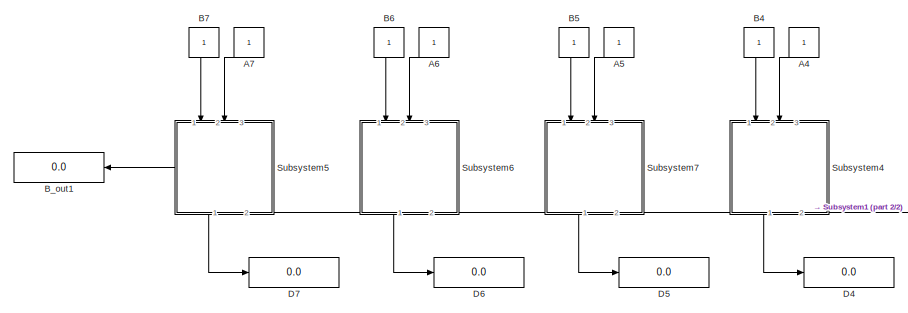
[diagram: root canvas - part 1/2, left side, full height]
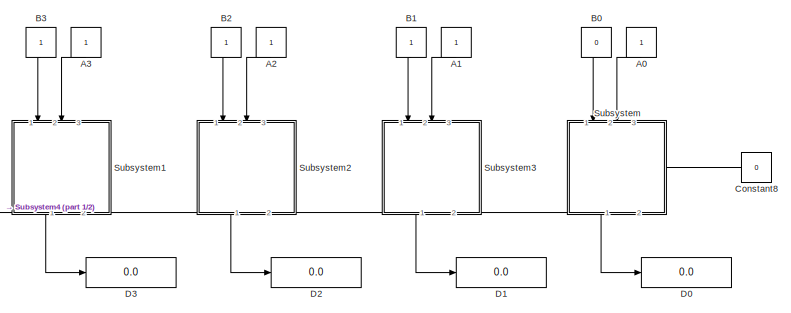
[diagram: root canvas - part 2/2, right side, full height]
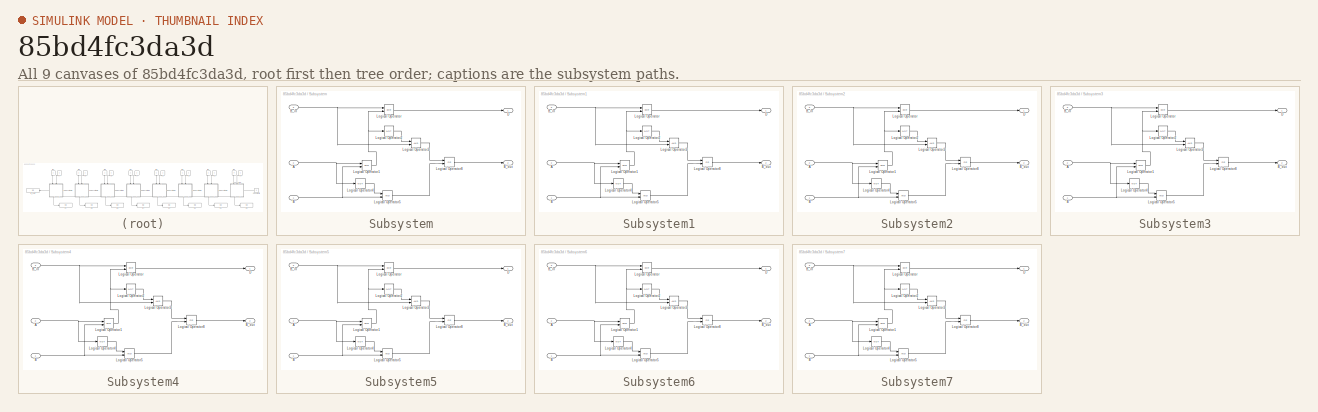
[diagram: thumbnail index - all 9 canvases of the model, root first then tree order]
MODEL slx_85bd4fc3da3d
KIND model
CONFIG AbsTol = auto
CONFIG EnableMultiTasking = off
CONFIG FixedStep = auto
CONFIG MaxStep = auto
CONFIG MinStep = auto
CONFIG RelTol = 1e-3
CONFIG SampleTimeConstraint = Unconstrained
CONFIG SolverName = VariableStepAuto
CONFIG StartTime = 0.0
CONFIG StopTime = 10.0
BLOCK [Constant] A0
  NameLocation = right
BLOCK [Constant] A1
  NameLocation = right
BLOCK [Constant] A2
  NameLocation = right
BLOCK [Constant] A3
  NameLocation = right
BLOCK [Constant] A4
  NameLocation = right
BLOCK [Constant] A5
  NameLocation = right
BLOCK [Constant] A6
  NameLocation = right
BLOCK [Constant] A7
  NameLocation = right
BLOCK [Constant] B0
  NameLocation = left
  Value = 0
BLOCK [Constant] B1
  NameLocation = left
BLOCK [Constant] B2
  NameLocation = left
BLOCK [Constant] B3
  NameLocation = left
BLOCK [Constant] B4
  NameLocation = left
BLOCK [Constant] B5
  NameLocation = left
BLOCK [Constant] B6
  NameLocation = left
BLOCK [Constant] B7
  NameLocation = left
BLOCK [Display] B_out1
  Decimation = 1
  Ports = [1]
BLOCK [Constant] Constant8
  NameLocation = top
  Value = 0
BLOCK [Display] D0
  Decimation = 1
  Ports = [1]
BLOCK [Display] D1
  Decimation = 1
  Ports = [1]
BLOCK [Display] D2
  Decimation = 1
  Ports = [1]
BLOCK [Display] D3
  Decimation = 1
  Ports = [1]
BLOCK [Display] D4
  Decimation = 1
  Ports = [1]
BLOCK [Display] D5
  Decimation = 1
  Ports = [1]
BLOCK [Display] D6
  Decimation = 1
  Ports = [1]
BLOCK [Display] D7
  Decimation = 1
  Ports = [1]
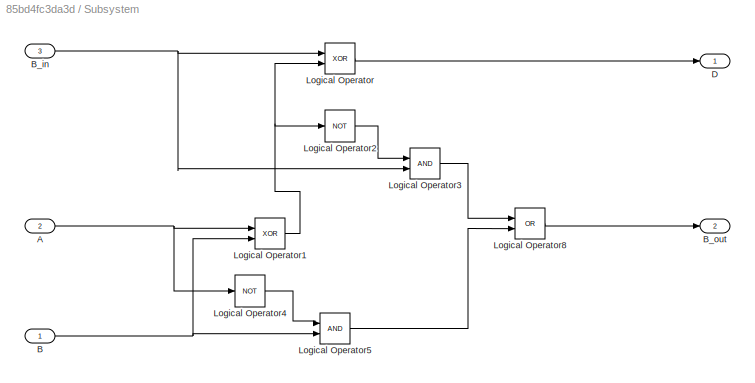
BLOCK [SubSystem] Subsystem
  NameLocation = left
  PortSchema = {"entries":[{"content":{"sides":[{"content":{"connectorIds":["In1","In2"]},"type":"ConnectorPlacement.EquallySpacedRectSide","uuid":"38d1d783-1e84-469f-b88f-34400794f458"},{"content":{"connectorIds":["Out1"],"side":"RIGHT"},"type":"ConnectorPlacement.EquallySpacedRectSide","uuid":"9549b396-3b16-432f-9c12-dae7a5b8dc11"},{"content":{"connectorIds":["Out2"],"side":"TOP"},"type":"ConnectorPlacement.Eq...<+401ch>  <repeated x8 — deduplicated; at blocks: Subsystem, Subsystem1, Subsystem2, Subsystem3, Subsystem4, Subsystem5, Subsystem6, Subsystem7>
  Ports = [3, 2]
  RequestExecContextInheritance = off
BLOCK [Inport] Subsystem/A
  Port = 2
BLOCK [Inport] Subsystem/B
BLOCK [Inport] Subsystem/B_in
  Port = 3
BLOCK [Outport] Subsystem/B_out
  Port = 2
BLOCK [Outport] Subsystem/D
BLOCK [Logic] Subsystem/Logical Operator
  AllPortsSameDT = off
  Operator = XOR
  OutDataTypeStr = boolean
  Ports = [2, 1]
BLOCK [Logic] Subsystem/Logical Operator1
  AllPortsSameDT = off
  Operator = XOR
  OutDataTypeStr = boolean
  Ports = [2, 1]
BLOCK [Logic] Subsystem/Logical Operator2
  AllPortsSameDT = off
  Operator = NOT
  OutDataTypeStr = boolean
  Ports = [1, 1]
BLOCK [Logic] Subsystem/Logical Operator3
  AllPortsSameDT = off
  OutDataTypeStr = boolean
  Ports = [2, 1]
BLOCK [Logic] Subsystem/Logical Operator4
  AllPortsSameDT = off
  Operator = NOT
  OutDataTypeStr = boolean
  Ports = [1, 1]
BLOCK [Logic] Subsystem/Logical Operator5
  AllPortsSameDT = off
  OutDataTypeStr = boolean
  Ports = [2, 1]
BLOCK [Logic] Subsystem/Logical Operator8
  AllPortsSameDT = off
  Operator = OR
  OutDataTypeStr = boolean
  Ports = [2, 1]
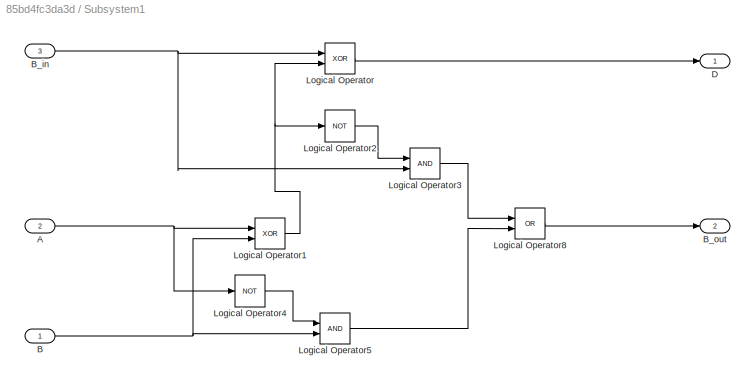
BLOCK [SubSystem] Subsystem1
  NameLocation = left
  Ports = [3, 2]
  RequestExecContextInheritance = off
BLOCK [Inport] Subsystem1/A
  Port = 2
BLOCK [Inport] Subsystem1/B
BLOCK [Inport] Subsystem1/B_in
  Port = 3
BLOCK [Outport] Subsystem1/B_out
  Port = 2
BLOCK [Outport] Subsystem1/D
BLOCK [Logic] Subsystem1/Logical Operator
  AllPortsSameDT = off
  Operator = XOR
  OutDataTypeStr = boolean
  Ports = [2, 1]
BLOCK [Logic] Subsystem1/Logical Operator1
  AllPortsSameDT = off
  Operator = XOR
  OutDataTypeStr = boolean
  Ports = [2, 1]
BLOCK [Logic] Subsystem1/Logical Operator2
  AllPortsSameDT = off
  Operator = NOT
  OutDataTypeStr = boolean
  Ports = [1, 1]
BLOCK [Logic] Subsystem1/Logical Operator3
  AllPortsSameDT = off
  OutDataTypeStr = boolean
  Ports = [2, 1]
BLOCK [Logic] Subsystem1/Logical Operator4
  AllPortsSameDT = off
  Operator = NOT
  OutDataTypeStr = boolean
  Ports = [1, 1]
BLOCK [Logic] Subsystem1/Logical Operator5
  AllPortsSameDT = off
  OutDataTypeStr = boolean
  Ports = [2, 1]
BLOCK [Logic] Subsystem1/Logical Operator8
  AllPortsSameDT = off
  Operator = OR
  OutDataTypeStr = boolean
  Ports = [2, 1]
BLOCK [SubSystem] Subsystem2
  NameLocation = left
  Ports = [3, 2]
  RequestExecContextInheritance = off
BLOCK [Inport] Subsystem2/A
  Port = 2
BLOCK [Inport] Subsystem2/B
BLOCK [Inport] Subsystem2/B_in
  Port = 3
BLOCK [Outport] Subsystem2/B_out
  Port = 2
BLOCK [Outport] Subsystem2/D
BLOCK [Logic] Subsystem2/Logical Operator
  AllPortsSameDT = off
  Operator = XOR
  OutDataTypeStr = boolean
  Ports = [2, 1]
BLOCK [Logic] Subsystem2/Logical Operator1
  AllPortsSameDT = off
  Operator = XOR
  OutDataTypeStr = boolean
  Ports = [2, 1]
BLOCK [Logic] Subsystem2/Logical Operator2
  AllPortsSameDT = off
  Operator = NOT
  OutDataTypeStr = boolean
  Ports = [1, 1]
BLOCK [Logic] Subsystem2/Logical Operator3
  AllPortsSameDT = off
  OutDataTypeStr = boolean
  Ports = [2, 1]
BLOCK [Logic] Subsystem2/Logical Operator4
  AllPortsSameDT = off
  Operator = NOT
  OutDataTypeStr = boolean
  Ports = [1, 1]
BLOCK [Logic] Subsystem2/Logical Operator5
  AllPortsSameDT = off
  OutDataTypeStr = boolean
  Ports = [2, 1]
BLOCK [Logic] Subsystem2/Logical Operator8
  AllPortsSameDT = off
  Operator = OR
  OutDataTypeStr = boolean
  Ports = [2, 1]
BLOCK [SubSystem] Subsystem3
  NameLocation = left
  Ports = [3, 2]
  RequestExecContextInheritance = off
BLOCK [Inport] Subsystem3/A
  Port = 2
BLOCK [Inport] Subsystem3/B
BLOCK [Inport] Subsystem3/B_in
  Port = 3
BLOCK [Outport] Subsystem3/B_out
  Port = 2
BLOCK [Outport] Subsystem3/D
BLOCK [Logic] Subsystem3/Logical Operator
  AllPortsSameDT = off
  Operator = XOR
  OutDataTypeStr = boolean
  Ports = [2, 1]
BLOCK [Logic] Subsystem3/Logical Operator1
  AllPortsSameDT = off
  Operator = XOR
  OutDataTypeStr = boolean
  Ports = [2, 1]
BLOCK [Logic] Subsystem3/Logical Operator2
  AllPortsSameDT = off
  Operator = NOT
  OutDataTypeStr = boolean
  Ports = [1, 1]
BLOCK [Logic] Subsystem3/Logical Operator3
  AllPortsSameDT = off
  OutDataTypeStr = boolean
  Ports = [2, 1]
BLOCK [Logic] Subsystem3/Logical Operator4
  AllPortsSameDT = off
  Operator = NOT
  OutDataTypeStr = boolean
  Ports = [1, 1]
BLOCK [Logic] Subsystem3/Logical Operator5
  AllPortsSameDT = off
  OutDataTypeStr = boolean
  Ports = [2, 1]
BLOCK [Logic] Subsystem3/Logical Operator8
  AllPortsSameDT = off
  Operator = OR
  OutDataTypeStr = boolean
  Ports = [2, 1]
BLOCK [SubSystem] Subsystem4
  NameLocation = left
  Ports = [3, 2]
  RequestExecContextInheritance = off
BLOCK [Inport] Subsystem4/A
  Port = 2
BLOCK [Inport] Subsystem4/B
BLOCK [Inport] Subsystem4/B_in
  Port = 3
BLOCK [Outport] Subsystem4/B_out
  Port = 2
BLOCK [Outport] Subsystem4/D
BLOCK [Logic] Subsystem4/Logical Operator
  AllPortsSameDT = off
  Operator = XOR
  OutDataTypeStr = boolean
  Ports = [2, 1]
BLOCK [Logic] Subsystem4/Logical Operator1
  AllPortsSameDT = off
  Operator = XOR
  OutDataTypeStr = boolean
  Ports = [2, 1]
BLOCK [Logic] Subsystem4/Logical Operator2
  AllPortsSameDT = off
  Operator = NOT
  OutDataTypeStr = boolean
  Ports = [1, 1]
BLOCK [Logic] Subsystem4/Logical Operator3
  AllPortsSameDT = off
  OutDataTypeStr = boolean
  Ports = [2, 1]
BLOCK [Logic] Subsystem4/Logical Operator4
  AllPortsSameDT = off
  Operator = NOT
  OutDataTypeStr = boolean
  Ports = [1, 1]
BLOCK [Logic] Subsystem4/Logical Operator5
  AllPortsSameDT = off
  OutDataTypeStr = boolean
  Ports = [2, 1]
BLOCK [Logic] Subsystem4/Logical Operator8
  AllPortsSameDT = off
  Operator = OR
  OutDataTypeStr = boolean
  Ports = [2, 1]
BLOCK [SubSystem] Subsystem5
  NameLocation = left
  Ports = [3, 2]
  RequestExecContextInheritance = off
BLOCK [Inport] Subsystem5/A
  Port = 2
BLOCK [Inport] Subsystem5/B
BLOCK [Inport] Subsystem5/B_in
  Port = 3
BLOCK [Outport] Subsystem5/B_out
  Port = 2
BLOCK [Outport] Subsystem5/D
BLOCK [Logic] Subsystem5/Logical Operator
  AllPortsSameDT = off
  Operator = XOR
  OutDataTypeStr = boolean
  Ports = [2, 1]
BLOCK [Logic] Subsystem5/Logical Operator1
  AllPortsSameDT = off
  Operator = XOR
  OutDataTypeStr = boolean
  Ports = [2, 1]
BLOCK [Logic] Subsystem5/Logical Operator2
  AllPortsSameDT = off
  Operator = NOT
  OutDataTypeStr = boolean
  Ports = [1, 1]
BLOCK [Logic] Subsystem5/Logical Operator3
  AllPortsSameDT = off
  OutDataTypeStr = boolean
  Ports = [2, 1]
BLOCK [Logic] Subsystem5/Logical Operator4
  AllPortsSameDT = off
  Operator = NOT
  OutDataTypeStr = boolean
  Ports = [1, 1]
BLOCK [Logic] Subsystem5/Logical Operator5
  AllPortsSameDT = off
  OutDataTypeStr = boolean
  Ports = [2, 1]
BLOCK [Logic] Subsystem5/Logical Operator8
  AllPortsSameDT = off
  Operator = OR
  OutDataTypeStr = boolean
  Ports = [2, 1]
BLOCK [SubSystem] Subsystem6
  NameLocation = left
  Ports = [3, 2]
  RequestExecContextInheritance = off
BLOCK [Inport] Subsystem6/A
  Port = 2
BLOCK [Inport] Subsystem6/B
BLOCK [Inport] Subsystem6/B_in
  Port = 3
BLOCK [Outport] Subsystem6/B_out
  Port = 2
BLOCK [Outport] Subsystem6/D
BLOCK [Logic] Subsystem6/Logical Operator
  AllPortsSameDT = off
  Operator = XOR
  OutDataTypeStr = boolean
  Ports = [2, 1]
BLOCK [Logic] Subsystem6/Logical Operator1
  AllPortsSameDT = off
  Operator = XOR
  OutDataTypeStr = boolean
  Ports = [2, 1]
BLOCK [Logic] Subsystem6/Logical Operator2
  AllPortsSameDT = off
  Operator = NOT
  OutDataTypeStr = boolean
  Ports = [1, 1]
BLOCK [Logic] Subsystem6/Logical Operator3
  AllPortsSameDT = off
  OutDataTypeStr = boolean
  Ports = [2, 1]
BLOCK [Logic] Subsystem6/Logical Operator4
  AllPortsSameDT = off
  Operator = NOT
  OutDataTypeStr = boolean
  Ports = [1, 1]
BLOCK [Logic] Subsystem6/Logical Operator5
  AllPortsSameDT = off
  OutDataTypeStr = boolean
  Ports = [2, 1]
BLOCK [Logic] Subsystem6/Logical Operator8
  AllPortsSameDT = off
  Operator = OR
  OutDataTypeStr = boolean
  Ports = [2, 1]
BLOCK [SubSystem] Subsystem7
  NameLocation = left
  Ports = [3, 2]
  RequestExecContextInheritance = off
BLOCK [Inport] Subsystem7/A
  Port = 2
BLOCK [Inport] Subsystem7/B
BLOCK [Inport] Subsystem7/B_in
  Port = 3
BLOCK [Outport] Subsystem7/B_out
  Port = 2
BLOCK [Outport] Subsystem7/D
BLOCK [Logic] Subsystem7/Logical Operator
  AllPortsSameDT = off
  Operator = XOR
  OutDataTypeStr = boolean
  Ports = [2, 1]
BLOCK [Logic] Subsystem7/Logical Operator1
  AllPortsSameDT = off
  Operator = XOR
  OutDataTypeStr = boolean
  Ports = [2, 1]
BLOCK [Logic] Subsystem7/Logical Operator2
  AllPortsSameDT = off
  Operator = NOT
  OutDataTypeStr = boolean
  Ports = [1, 1]
BLOCK [Logic] Subsystem7/Logical Operator3
  AllPortsSameDT = off
  OutDataTypeStr = boolean
  Ports = [2, 1]
BLOCK [Logic] Subsystem7/Logical Operator4
  AllPortsSameDT = off
  Operator = NOT
  OutDataTypeStr = boolean
  Ports = [1, 1]
BLOCK [Logic] Subsystem7/Logical Operator5
  AllPortsSameDT = off
  OutDataTypeStr = boolean
  Ports = [2, 1]
BLOCK [Logic] Subsystem7/Logical Operator8
  AllPortsSameDT = off
  Operator = OR
  OutDataTypeStr = boolean
  Ports = [2, 1]
LINE A0:1 -> Subsystem:2
LINE A1:1 -> Subsystem3:2
LINE A2:1 -> Subsystem2:2
LINE A3:1 -> Subsystem1:2
LINE A4:1 -> Subsystem4:2
LINE A5:1 -> Subsystem7:2
LINE A6:1 -> Subsystem6:2
LINE A7:1 -> Subsystem5:2
LINE B0:1 -> Subsystem:1
LINE B1:1 -> Subsystem3:1
LINE B2:1 -> Subsystem2:1
LINE B3:1 -> Subsystem1:1
LINE B4:1 -> Subsystem4:1
LINE B5:1 -> Subsystem7:1
LINE B6:1 -> Subsystem6:1
LINE B7:1 -> Subsystem5:1
LINE Constant8:1 -> Subsystem:3
NET Subsystem/A:1 -> Subsystem/Logical Operator1:1, Subsystem/Logical Operator4:1
NET Subsystem/B:1 -> Subsystem/Logical Operator1:2, Subsystem/Logical Operator5:2
NET Subsystem/B_in:1 -> Subsystem/Logical Operator3:2, Subsystem/Logical Operator:1
NET Subsystem/Logical Operator1:1 -> Subsystem/Logical Operator2:1, Subsystem/Logical Operator:2
LINE Subsystem/Logical Operator2:1 -> Subsystem/Logical Operator3:1
LINE Subsystem/Logical Operator3:1 -> Subsystem/Logical Operator8:1
LINE Subsystem/Logical Operator4:1 -> Subsystem/Logical Operator5:1
LINE Subsystem/Logical Operator5:1 -> Subsystem/Logical Operator8:2
LINE Subsystem/Logical Operator8:1 -> Subsystem/B_out:1
LINE Subsystem/Logical Operator:1 -> Subsystem/D:1
NET Subsystem1/A:1 -> Subsystem1/Logical Operator1:1, Subsystem1/Logical Operator4:1
NET Subsystem1/B:1 -> Subsystem1/Logical Operator1:2, Subsystem1/Logical Operator5:2
NET Subsystem1/B_in:1 -> Subsystem1/Logical Operator3:2, Subsystem1/Logical Operator:1
NET Subsystem1/Logical Operator1:1 -> Subsystem1/Logical Operator2:1, Subsystem1/Logical Operator:2
LINE Subsystem1/Logical Operator2:1 -> Subsystem1/Logical Operator3:1
LINE Subsystem1/Logical Operator3:1 -> Subsystem1/Logical Operator8:1
LINE Subsystem1/Logical Operator4:1 -> Subsystem1/Logical Operator5:1
LINE Subsystem1/Logical Operator5:1 -> Subsystem1/Logical Operator8:2
LINE Subsystem1/Logical Operator8:1 -> Subsystem1/B_out:1
LINE Subsystem1/Logical Operator:1 -> Subsystem1/D:1
LINE Subsystem1:1 -> D3:1
LINE Subsystem1:2 -> Subsystem4:3
NET Subsystem2/A:1 -> Subsystem2/Logical Operator1:1, Subsystem2/Logical Operator4:1
NET Subsystem2/B:1 -> Subsystem2/Logical Operator1:2, Subsystem2/Logical Operator5:2
NET Subsystem2/B_in:1 -> Subsystem2/Logical Operator3:2, Subsystem2/Logical Operator:1
NET Subsystem2/Logical Operator1:1 -> Subsystem2/Logical Operator2:1, Subsystem2/Logical Operator:2
LINE Subsystem2/Logical Operator2:1 -> Subsystem2/Logical Operator3:1
LINE Subsystem2/Logical Operator3:1 -> Subsystem2/Logical Operator8:1
LINE Subsystem2/Logical Operator4:1 -> Subsystem2/Logical Operator5:1
LINE Subsystem2/Logical Operator5:1 -> Subsystem2/Logical Operator8:2
LINE Subsystem2/Logical Operator8:1 -> Subsystem2/B_out:1
LINE Subsystem2/Logical Operator:1 -> Subsystem2/D:1
LINE Subsystem2:1 -> D2:1
LINE Subsystem2:2 -> Subsystem1:3
NET Subsystem3/A:1 -> Subsystem3/Logical Operator1:1, Subsystem3/Logical Operator4:1
NET Subsystem3/B:1 -> Subsystem3/Logical Operator1:2, Subsystem3/Logical Operator5:2
NET Subsystem3/B_in:1 -> Subsystem3/Logical Operator3:2, Subsystem3/Logical Operator:1
NET Subsystem3/Logical Operator1:1 -> Subsystem3/Logical Operator2:1, Subsystem3/Logical Operator:2
LINE Subsystem3/Logical Operator2:1 -> Subsystem3/Logical Operator3:1
LINE Subsystem3/Logical Operator3:1 -> Subsystem3/Logical Operator8:1
LINE Subsystem3/Logical Operator4:1 -> Subsystem3/Logical Operator5:1
LINE Subsystem3/Logical Operator5:1 -> Subsystem3/Logical Operator8:2
LINE Subsystem3/Logical Operator8:1 -> Subsystem3/B_out:1
LINE Subsystem3/Logical Operator:1 -> Subsystem3/D:1
LINE Subsystem3:1 -> D1:1
LINE Subsystem3:2 -> Subsystem2:3
NET Subsystem4/A:1 -> Subsystem4/Logical Operator1:1, Subsystem4/Logical Operator4:1
NET Subsystem4/B:1 -> Subsystem4/Logical Operator1:2, Subsystem4/Logical Operator5:2
NET Subsystem4/B_in:1 -> Subsystem4/Logical Operator3:2, Subsystem4/Logical Operator:1
NET Subsystem4/Logical Operator1:1 -> Subsystem4/Logical Operator2:1, Subsystem4/Logical Operator:2
LINE Subsystem4/Logical Operator2:1 -> Subsystem4/Logical Operator3:1
LINE Subsystem4/Logical Operator3:1 -> Subsystem4/Logical Operator8:1
LINE Subsystem4/Logical Operator4:1 -> Subsystem4/Logical Operator5:1
LINE Subsystem4/Logical Operator5:1 -> Subsystem4/Logical Operator8:2
LINE Subsystem4/Logical Operator8:1 -> Subsystem4/B_out:1
LINE Subsystem4/Logical Operator:1 -> Subsystem4/D:1
LINE Subsystem4:1 -> D4:1
LINE Subsystem4:2 -> Subsystem7:3
NET Subsystem5/A:1 -> Subsystem5/Logical Operator1:1, Subsystem5/Logical Operator4:1
NET Subsystem5/B:1 -> Subsystem5/Logical Operator1:2, Subsystem5/Logical Operator5:2
NET Subsystem5/B_in:1 -> Subsystem5/Logical Operator3:2, Subsystem5/Logical Operator:1
NET Subsystem5/Logical Operator1:1 -> Subsystem5/Logical Operator2:1, Subsystem5/Logical Operator:2
LINE Subsystem5/Logical Operator2:1 -> Subsystem5/Logical Operator3:1
LINE Subsystem5/Logical Operator3:1 -> Subsystem5/Logical Operator8:1
LINE Subsystem5/Logical Operator4:1 -> Subsystem5/Logical Operator5:1
LINE Subsystem5/Logical Operator5:1 -> Subsystem5/Logical Operator8:2
LINE Subsystem5/Logical Operator8:1 -> Subsystem5/B_out:1
LINE Subsystem5/Logical Operator:1 -> Subsystem5/D:1
LINE Subsystem5:1 -> D7:1
LINE Subsystem5:2 -> B_out1:1
NET Subsystem6/A:1 -> Subsystem6/Logical Operator1:1, Subsystem6/Logical Operator4:1
NET Subsystem6/B:1 -> Subsystem6/Logical Operator1:2, Subsystem6/Logical Operator5:2
NET Subsystem6/B_in:1 -> Subsystem6/Logical Operator3:2, Subsystem6/Logical Operator:1
NET Subsystem6/Logical Operator1:1 -> Subsystem6/Logical Operator2:1, Subsystem6/Logical Operator:2
LINE Subsystem6/Logical Operator2:1 -> Subsystem6/Logical Operator3:1
LINE Subsystem6/Logical Operator3:1 -> Subsystem6/Logical Operator8:1
LINE Subsystem6/Logical Operator4:1 -> Subsystem6/Logical Operator5:1
LINE Subsystem6/Logical Operator5:1 -> Subsystem6/Logical Operator8:2
LINE Subsystem6/Logical Operator8:1 -> Subsystem6/B_out:1
LINE Subsystem6/Logical Operator:1 -> Subsystem6/D:1
LINE Subsystem6:1 -> D6:1
LINE Subsystem6:2 -> Subsystem5:3
NET Subsystem7/A:1 -> Subsystem7/Logical Operator1:1, Subsystem7/Logical Operator4:1
NET Subsystem7/B:1 -> Subsystem7/Logical Operator1:2, Subsystem7/Logical Operator5:2
NET Subsystem7/B_in:1 -> Subsystem7/Logical Operator3:2, Subsystem7/Logical Operator:1
NET Subsystem7/Logical Operator1:1 -> Subsystem7/Logical Operator2:1, Subsystem7/Logical Operator:2
LINE Subsystem7/Logical Operator2:1 -> Subsystem7/Logical Operator3:1
LINE Subsystem7/Logical Operator3:1 -> Subsystem7/Logical Operator8:1
LINE Subsystem7/Logical Operator4:1 -> Subsystem7/Logical Operator5:1
LINE Subsystem7/Logical Operator5:1 -> Subsystem7/Logical Operator8:2
LINE Subsystem7/Logical Operator8:1 -> Subsystem7/B_out:1
LINE Subsystem7/Logical Operator:1 -> Subsystem7/D:1
LINE Subsystem7:1 -> D5:1
LINE Subsystem7:2 -> Subsystem6:3
LINE Subsystem:1 -> D0:1
LINE Subsystem:2 -> Subsystem3:3
note: NET lines group one-source signal fan-out (src -> all destinations, sorted); 1:1 wires keep LINE
